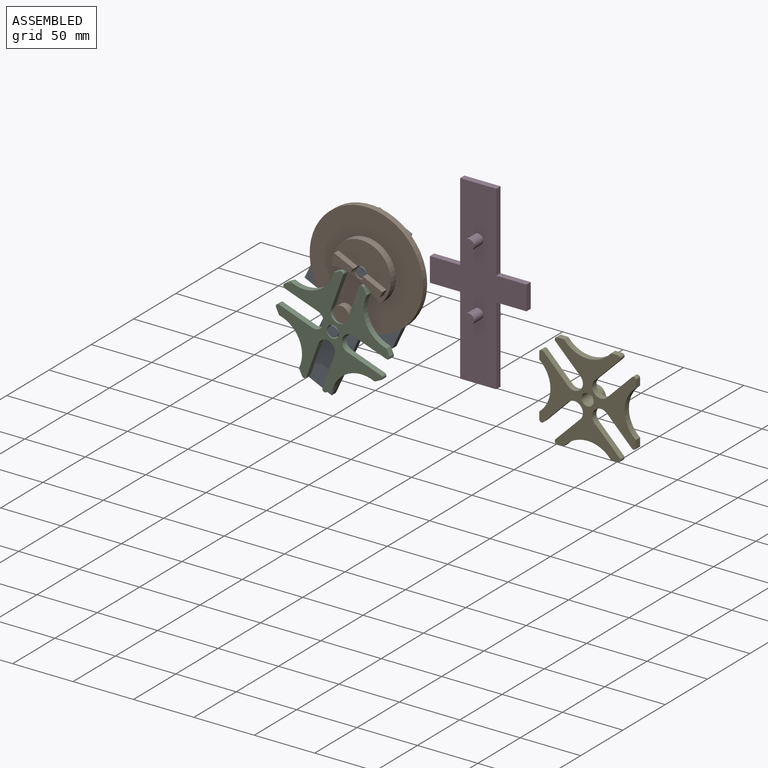
[diagram: assembled view]
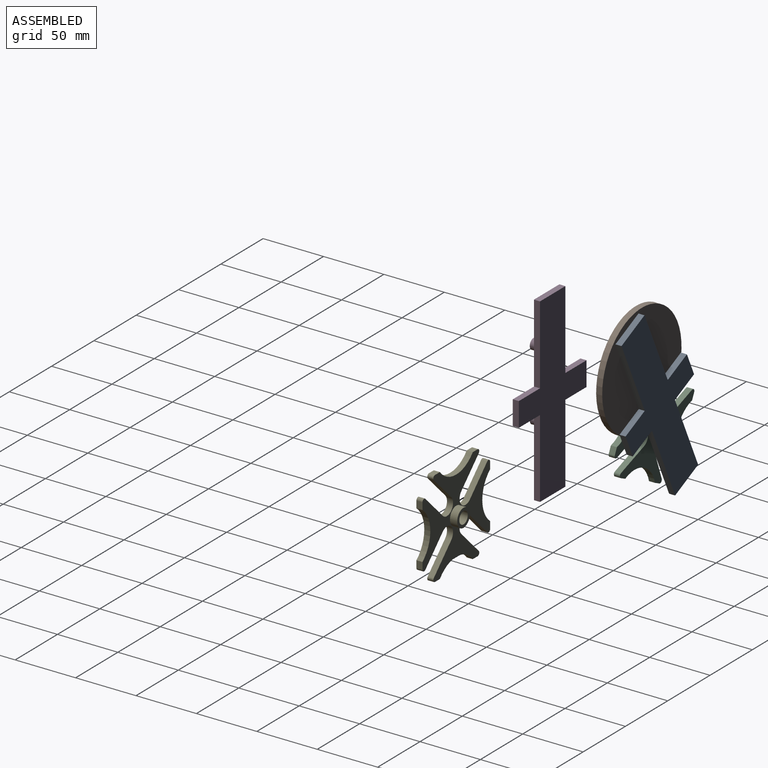
[diagram: assembled view, second angle]
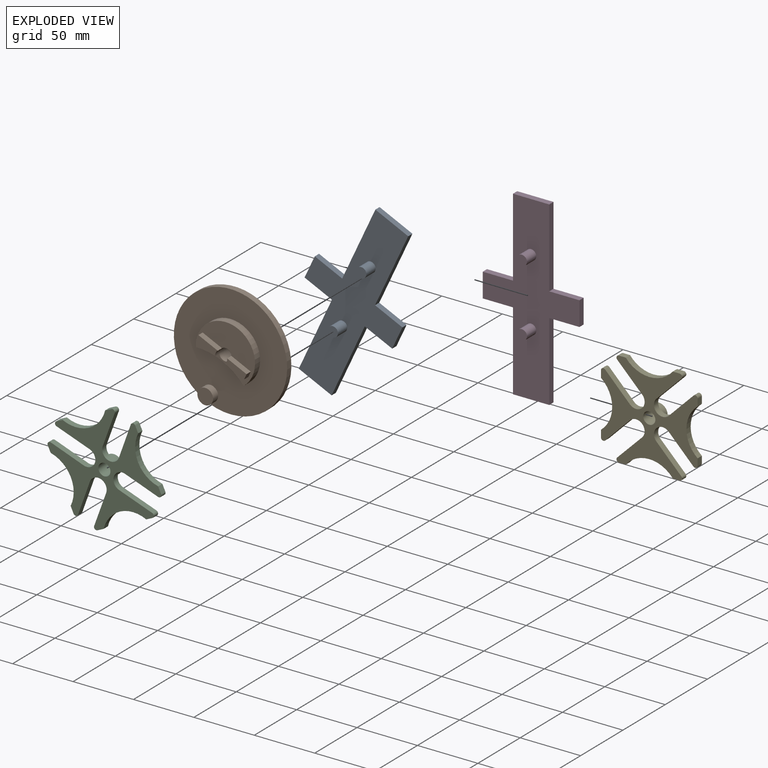
[diagram: exploded view]
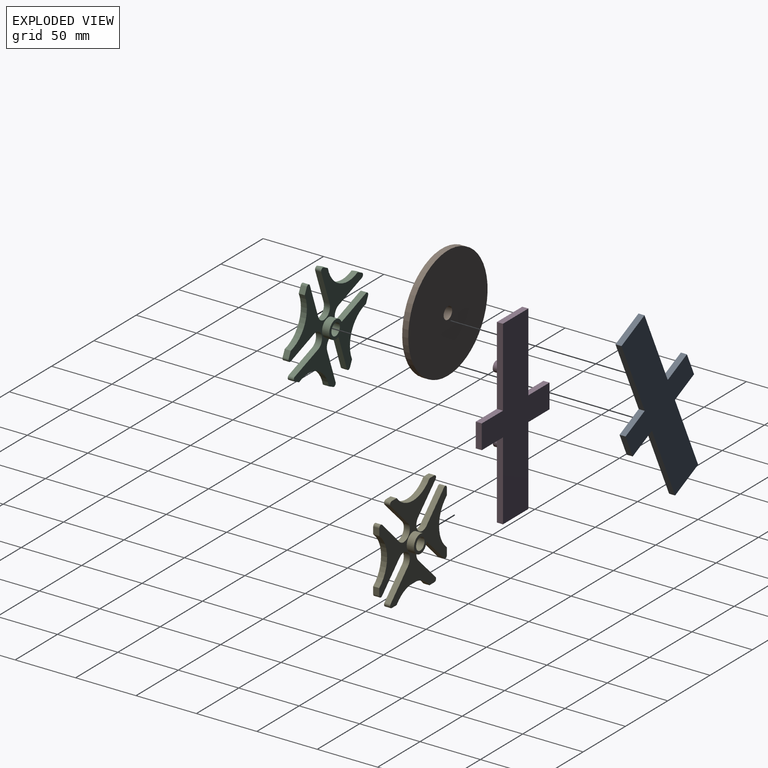
[diagram: exploded view, second angle]
ASSEMBLY  parts=3 mates=2
PART A: 18 faces, bbox 80x16x150 mm
  f0: plane 30x5mm, normal (0,0,-1), area 150mm2, adj f1,f11,f12,f13
  f1: plane 65x5mm, normal (1,0,0), area 325mm2, adj f0,f2,f12,f13
  f2: plane 25x5mm, normal (0,0,-1), area 125mm2, adj f1,f3,f12,f13
  f3: plane 20x5mm, normal (1,0,0), area 100mm2, adj f2,f4,f12,f13
  f4: plane 25x5mm, normal (0,0,1), area 125mm2, adj f3,f5,f12,f13
  f5: plane 65x5mm, normal (1,0,0), area 325mm2, adj f4,f6,f12,f13
  f6: plane 30x5mm, normal (0,0,1), area 150mm2, adj f5,f7,f12,f13
  f7: plane 65x5mm, normal (-1,0,0), area 325mm2, adj f6,f8,f12,f13
  f8: plane 25x5mm, normal (0,0,1), area 125mm2, adj f7,f9,f12,f13
  f9: plane 20x5mm, normal (-1,0,0), area 100mm2, adj f8,f10,f12,f13
  f10: plane 25x5mm, normal (0,0,-1), area 125mm2, adj f9,f11,f12,f13
  f11: plane 65x5mm, normal (-1,0,0), area 325mm2, adj f0,f10,f12,f13
  f12: plane 150x80mm, normal (0,-1,0), area 5386.5mm2, adj f0,f1,f2,f3,f4,f5,f6,f7
  f13: plane 150x80mm, normal (0,1,0), area 5500mm2, adj f0,f1,f2,f3,f4,f5,f6,f7
  f14: cylinder r=4.25mm len=11mm, axis (0,-1,0), area 293.7mm2, adj f12,f15
  f15: plane 8.5x8.5mm, normal (0,-1,0), area 56.7mm2, adj f14
  f16: cylinder r=4.25mm len=11mm, axis (0,-1,0), area 293.7mm2, adj f12,f17
  f17: plane 8.5x8.5mm, normal (0,-1,0), area 56.7mm2, adj f16
PART B: 17 faces, bbox 93.8x16x93.8 mm
  f0: plane 49x35.75mm, normal (0,-1,0), area 1074.9mm2, adj f1,f5,f6,f9,f10,f11,f13,f14
  f1: cylinder r=24.5mm len=49mm, axis (0,-1,0), area 601.9mm2, adj f0,f4,f5
  f2: cylinder r=46.88mm len=93.76mm, axis (0,-1,0), area 1472.8mm2, adj f3,f4
  f3: plane 93.76x93.76mm, normal (0,1,0), area 6826.2mm2, adj f2,f6
  f4: plane 93.76x93.76mm, normal (0,-1,0), area 5446.3mm2, adj f1,f2,f5,f7
  f5: cylinder r=49.5mm len=43.54mm, axis (0,-1,0), area 270.5mm2, adj f0,f1,f4
  f6: cylinder r=5mm len=16mm, axis (0,-1,0), area 397.9mm2, adj f0,f3,f10,f11,f12,f13,f15,f16
  f7: cylinder r=6.5mm len=13mm, axis (0,1,0), area 245mm2, adj f4,f8
  f8: plane 13x13mm, normal (0,-1,0), area 132.7mm2, adj f7
  f9: plane 5x5mm, normal (0,0,-1), area 25mm2, adj f0,f10,f11,f12
  f10: plane 17.67x5mm, normal (1,0,0), area 88.3mm2, adj f0,f6,f9,f12
  f11: plane 17.67x5mm, normal (-1,0,0), area 88.3mm2, adj f0,f6,f9,f12
  f12: plane 17.67x5mm, normal (0,-1,0), area 86.1mm2, adj f6,f9,f10,f11
  f13: plane 17.67x5mm, normal (1,0,0), area 88.3mm2, adj f0,f6,f14,f16
  f14: plane 5x5mm, normal (0,0,1), area 25mm2, adj f0,f13,f15,f16
  f15: plane 17.67x5mm, normal (-1,0,0), area 88.3mm2, adj f0,f6,f14,f16
  f16: plane 17.67x5mm, normal (0,-1,0), area 86.1mm2, adj f6,f13,f14,f15
PART C: 37 faces, bbox 80x11x80 mm
  f0: plane 5.71x5mm, normal (0,0,-1), area 28.5mm2, adj f4,f5,f23,f31
  f1: plane 5.71x5mm, normal (1,0,0), area 28.5mm2, adj f4,f5,f26,f32
  f2: plane 5.71x5mm, normal (0,0,1), area 28.5mm2, adj f4,f5,f28,f33
  f3: plane 5.71x5mm, normal (-1,0,0), area 28.5mm2, adj f4,f5,f29,f34
  f4: plane 80x80mm, normal (0,-1,0), area 2825.3mm2, adj f0,f1,f2,f3,f6,f7,f8,f9
  f5: plane 80x80mm, normal (0,1,0), area 2727.1mm2, adj f0,f1,f2,f3,f6,f7,f8,f9
  f6: cylinder r=7.14mm len=12.22mm, axis (0,1,0), area 112.5mm2, adj f4,f5,f7,f21
  f7: plane 20.59x20.5mm, normal (-0.71,0,0.71), area 145.3mm2, adj f4,f5,f6,f23
  f8: plane 5.71x5mm, normal (0,0,-1), area 28.5mm2, adj f4,f5,f24,f31
  f9: plane 20.59x20.5mm, normal (0.71,0,0.71), area 145.3mm2, adj f4,f5,f10,f24
  f10: cylinder r=7.14mm len=12.22mm, axis (0,1,0), area 112.5mm2, adj f4,f5,f9,f11
  f11: plane 20.61x20.52mm, normal (-0.71,0,-0.71), area 145.4mm2, adj f4,f5,f10,f25
  f12: plane 5.71x5mm, normal (1,0,0), area 28.5mm2, adj f4,f5,f25,f32
  f13: plane 20.59x20.5mm, normal (-0.71,0,0.71), area 145.3mm2, adj f4,f5,f14,f26
  f14: cylinder r=7.14mm len=12.22mm, axis (0,1,0), area 112.5mm2, adj f4,f5,f13,f15
  f15: plane 20.61x20.52mm, normal (0.71,0,-0.71), area 145.4mm2, adj f4,f5,f14,f27
  f16: plane 5.71x5mm, normal (0,0,1), area 28.5mm2, adj f4,f5,f27,f33
  f17: plane 20.61x20.52mm, normal (-0.71,0,-0.71), area 145.4mm2, adj f4,f5,f18,f28
  f18: cylinder r=7.14mm len=12.22mm, axis (0,1,0), area 112.5mm2, adj f4,f5,f17,f19
  f19: plane 20.59x20.5mm, normal (0.71,0,0.71), area 145.3mm2, adj f4,f5,f18,f29
  f20: plane 5.71x5mm, normal (-1,0,0), area 28.5mm2, adj f4,f5,f30,f34
  f21: plane 20.61x20.52mm, normal (0.71,0,-0.71), area 145.4mm2, adj f4,f5,f6,f30
  f22: cylinder r=5mm len=11mm, axis (0,1,0), area 345.6mm2, adj f4,f36
  f23: cylinder r=2mm len=5mm, axis (0,-1,0), area 23.6mm2, adj f0,f4,f5,f7
  f24: cylinder r=2mm len=5mm, axis (0,1,0), area 23.6mm2, adj f4,f5,f8,f9
  f25: cylinder r=2mm len=5mm, axis (0,-1,0), area 23.6mm2, adj f4,f5,f11,f12
  f26: cylinder r=2mm len=5mm, axis (0,-1,0), area 23.6mm2, adj f1,f4,f5,f13
  f27: cylinder r=2mm len=5mm, axis (0,-1,0), area 23.6mm2, adj f4,f5,f15,f16
  f28: cylinder r=2mm len=5mm, axis (0,1,0), area 23.6mm2, adj f2,f4,f5,f17
  f29: cylinder r=2mm len=5mm, axis (0,-1,0), area 23.6mm2, adj f3,f4,f5,f19
  f30: cylinder r=2mm len=5mm, axis (0,-1,0), area 23.6mm2, adj f4,f5,f20,f21
  f31: cylinder r=25mm len=38.9mm, axis (0,-1,0), area 222.8mm2, adj f0,f4,f5,f8
  f32: cylinder r=25mm len=38.9mm, axis (0,-1,0), area 222.8mm2, adj f1,f4,f5,f12
  f33: cylinder r=25mm len=38.9mm, axis (0,-1,0), area 222.8mm2, adj f2,f4,f5,f16
  f34: cylinder r=25mm len=38.9mm, axis (0,-1,0), area 222.8mm2, adj f3,f4,f5,f20
  f35: cylinder r=7.5mm len=15mm, axis (0,-1,0), area 282.7mm2, adj f5,f36
  f36: plane 15x15mm, normal (0,1,0), area 98.2mm2, adj f22,f35
PLACE A rot(axis=(0,1,0),25deg) t=(-112.79,11,-40.41)mm
PLACE B rot(axis=(0,1,0),115deg) t=(-148.31,11,-56.51)mm
PLACE C rot(axis=(0,1,0),64.9deg) t=(-42.72,11,-77.66)mm
MATE revolute C.f22 <-> A.f16  axis (0,1,0) through (-104.35,17,-60.19)mm
MATE cylindrical B.f1 <-> A.f14  axis (0,1,0) through (-80.8,17,-9.7)mm
